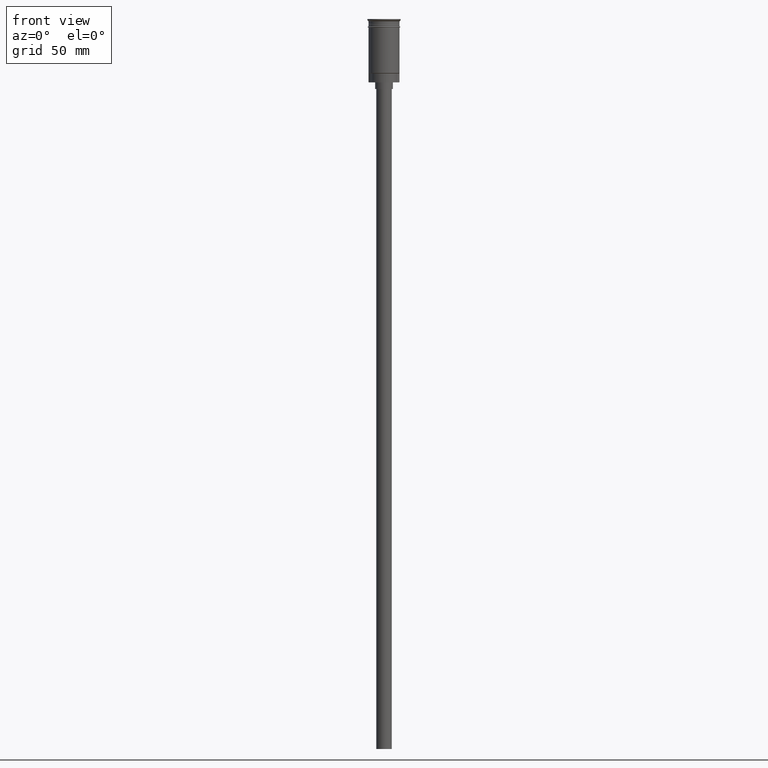
[diagram: clean part render]
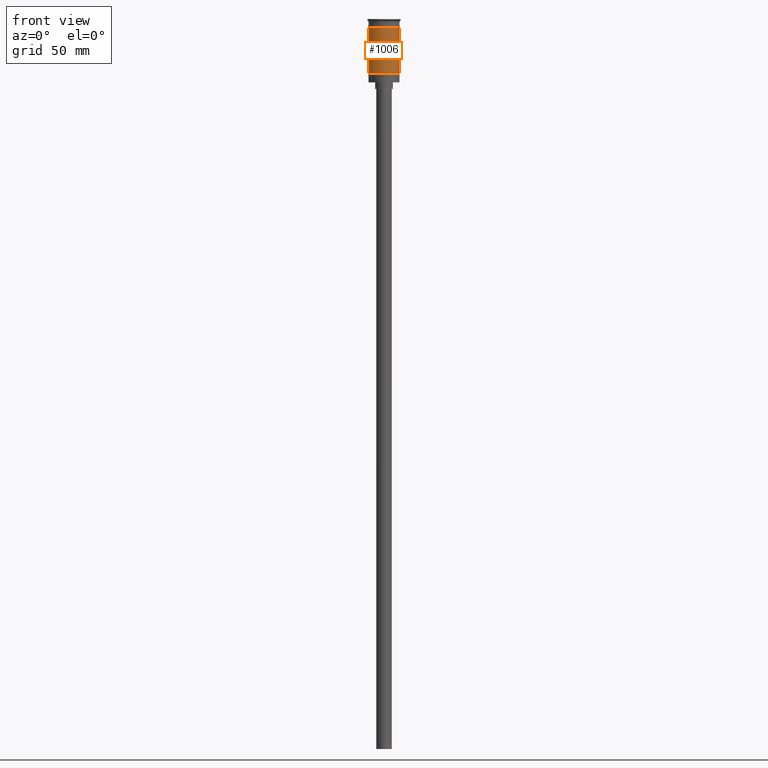
[diagram: same view with one face highlighted and labeled with its STEP entity id]
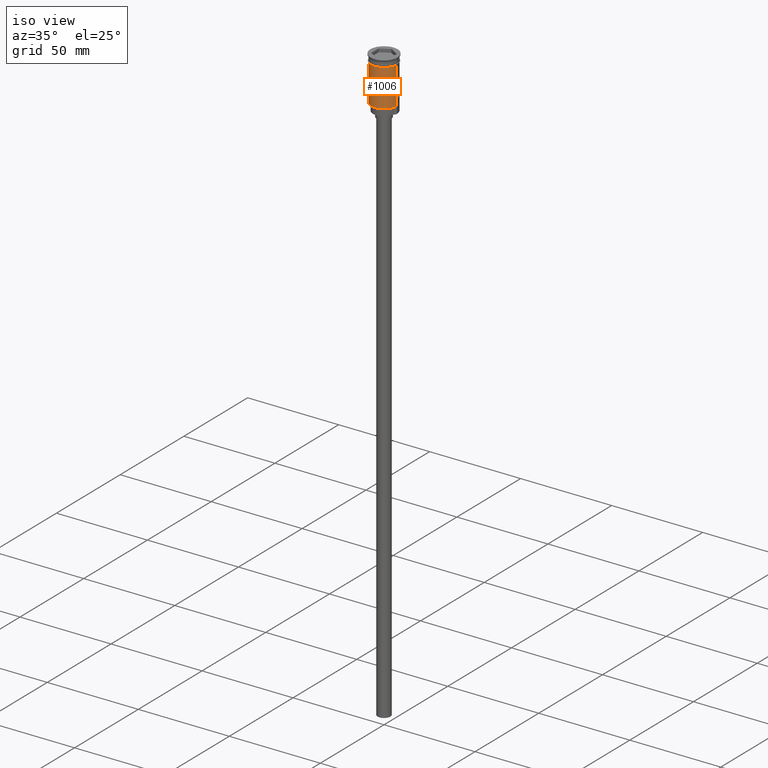
[diagram: same view with one face highlighted and labeled with its STEP entity id]
A machine part, front view. The second image highlights one B-rep face of the part: STEP entity #1006.
A second angle (iso view) of the same face is appended — the face is thin or edge-on in the first view.
In plain terms, the highlighted cylindrical surface (edge-blend (fillet) strip) has radius 7 mm, axis along (-0, -0, 1).
Its self-contained STEP definition (entity closure, byte-faithful):
#22 = EDGE_LOOP ( 'NONE', ( #1423, #947, #1060, #1385 ) ) ;
#48 = CARTESIAN_POINT ( 'NONE',  ( -6.999999999999996447, 8.572527594031468259E-16, 0.000000000000000000 ) ) ;
#64 = AXIS2_PLACEMENT_3D ( 'NONE', #272, #759, #99 ) ;
#89 = DIRECTION ( 'NONE',  ( 1.000000000000000000, 0.000000000000000000, 0.000000000000000000 ) ) ;
#93 = CIRCLE ( 'NONE', #1183, 6.999999999999999112 ) ;
#99 = DIRECTION ( 'NONE',  ( -1.000000000000000000, 0.000000000000000000, 0.000000000000000000 ) ) ;
#117 = VECTOR ( 'NONE', #1395, 1000.000000000000000 ) ;
#165 = VERTEX_POINT ( 'NONE', #378 ) ;
#209 = DIRECTION ( 'NONE',  ( -0.000000000000000000, -0.000000000000000000, 1.000000000000000000 ) ) ;
#217 = CIRCLE ( 'NONE', #64, 6.999999999999996447 ) ;
#226 = DIRECTION ( 'NONE',  ( -0.000000000000000000, -0.000000000000000000, 1.000000000000000000 ) ) ;
#232 = DIRECTION ( 'NONE',  ( 1.000000000000000000, 0.000000000000000000, 0.000000000000000000 ) ) ;
#272 = CARTESIAN_POINT ( 'NONE',  ( 0.000000000000000000, 0.000000000000000000, -24.30000000000006466 ) ) ;
#285 = LINE ( 'NONE', #48, #117 ) ;
#355 = CARTESIAN_POINT ( 'NONE',  ( 0.000000000000000000, 0.000000000000000000, 0.000000000000000000 ) ) ;
#368 = FACE_OUTER_BOUND ( 'NONE', #22, .T. ) ;
#378 = CARTESIAN_POINT ( 'NONE',  ( 6.999999999999999112, 0.000000000000000000, -3.799999999999998490 ) ) ;
#406 = VERTEX_POINT ( 'NONE', #1327 ) ;
#418 = EDGE_CURVE ( 'NONE', #406, #165, #1550, .T. ) ;
#615 = VECTOR ( 'NONE', #209, 1000.000000000000000 ) ;
#712 = DIRECTION ( 'NONE',  ( -0.000000000000000000, -0.000000000000000000, 1.000000000000000000 ) ) ;
#759 = DIRECTION ( 'NONE',  ( -0.000000000000000000, -0.000000000000000000, 1.000000000000000000 ) ) ;
#767 = CARTESIAN_POINT ( 'NONE',  ( -6.999999999999993783, 0.000000000000000000, -24.30000000000006466 ) ) ;
#800 = EDGE_CURVE ( 'NONE', #1424, #406, #217, .T. ) ;
#943 = AXIS2_PLACEMENT_3D ( 'NONE', #355, #226, #232 ) ;
#947 = ORIENTED_EDGE ( 'NONE', *, *, #800, .T. ) ;
#982 = CYLINDRICAL_SURFACE ( 'NONE', #943, 6.999999999999996447 ) ;
#1006 = ADVANCED_FACE ( 'NONE', ( #368 ), #982, .T. ) ;
#1060 = ORIENTED_EDGE ( 'NONE', *, *, #418, .T. ) ;
#1087 = CARTESIAN_POINT ( 'NONE',  ( 6.999999999999996447, 0.000000000000000000, 0.000000000000000000 ) ) ;
#1158 = VERTEX_POINT ( 'NONE', #1166 ) ;
#1166 = CARTESIAN_POINT ( 'NONE',  ( -7.000000000000000000, 8.572527594031472204E-16, -3.799999999999998490 ) ) ;
#1183 = AXIS2_PLACEMENT_3D ( 'NONE', #1334, #712, #89 ) ;
#1327 = CARTESIAN_POINT ( 'NONE',  ( 6.999999999999996447, 8.572527594031468259E-16, -24.30000000000006466 ) ) ;
#1334 = CARTESIAN_POINT ( 'NONE',  ( 0.000000000000000000, 0.000000000000000000, -3.799999999999998490 ) ) ;
#1385 = ORIENTED_EDGE ( 'NONE', *, *, #1588, .F. ) ;
#1389 = EDGE_CURVE ( 'NONE', #1424, #1158, #285, .T. ) ;
#1395 = DIRECTION ( 'NONE',  ( -0.000000000000000000, -0.000000000000000000, 1.000000000000000000 ) ) ;
#1423 = ORIENTED_EDGE ( 'NONE', *, *, #1389, .F. ) ;
#1424 = VERTEX_POINT ( 'NONE', #767 ) ;
#1550 = LINE ( 'NONE', #1087, #615 ) ;
#1588 = EDGE_CURVE ( 'NONE', #1158, #165, #93, .T. ) ;